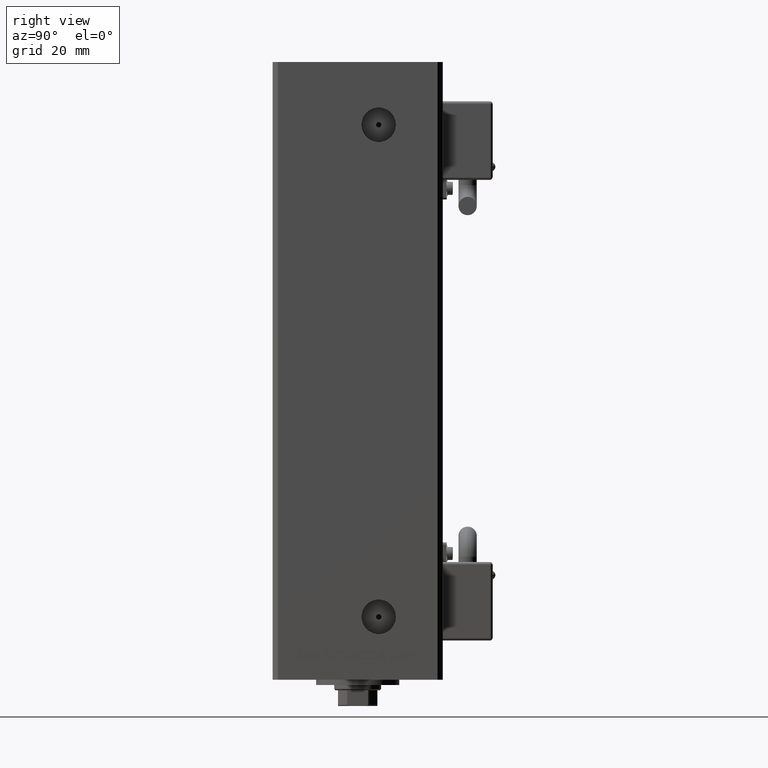
[diagram: clean part render]
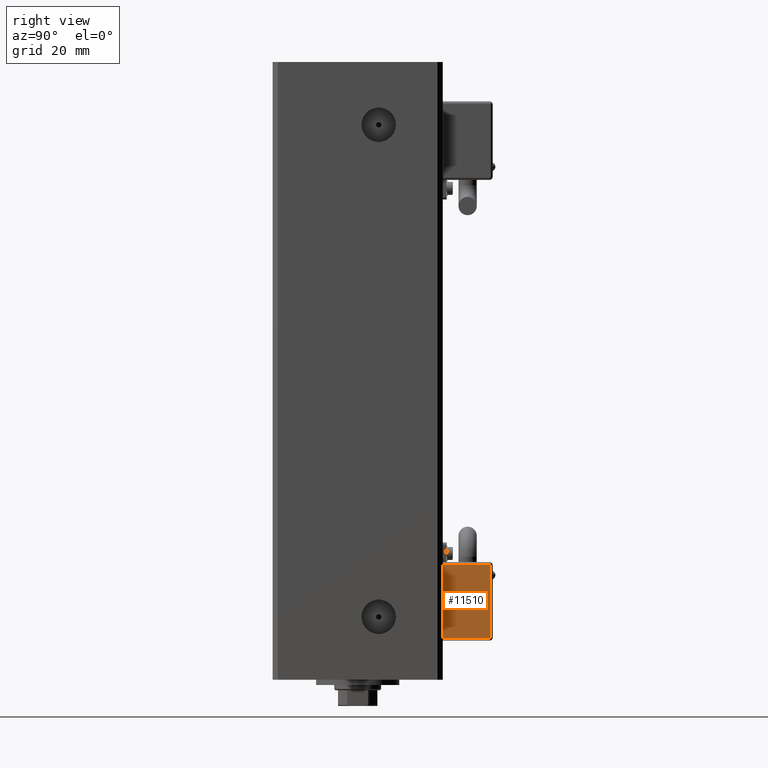
[diagram: same view with one face highlighted and labeled with its STEP entity id]
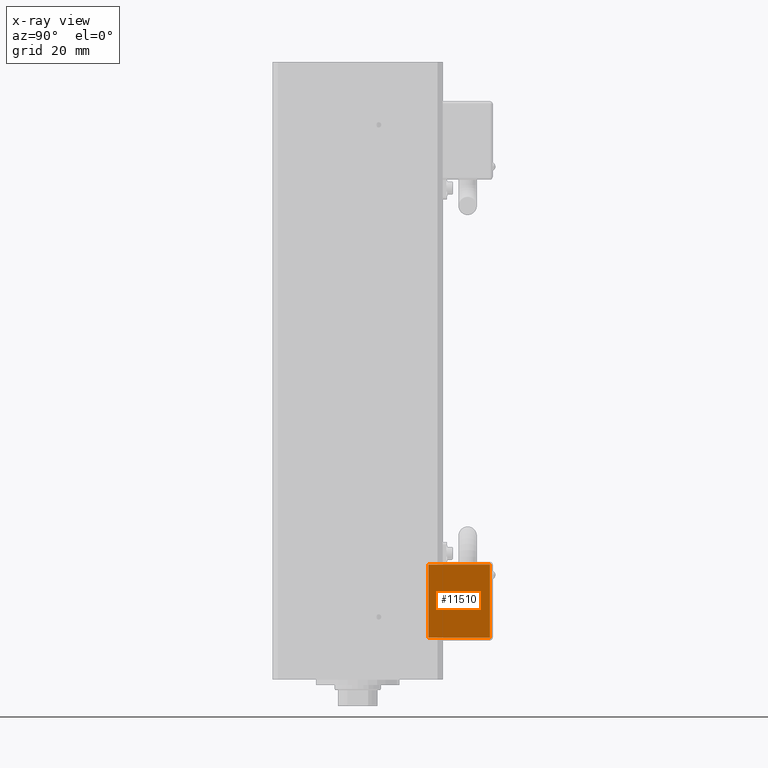
[diagram: x-ray of the same camera — body ghosted, the highlighted face saturated]
A machine part, right view. The second image highlights one B-rep face of the part: STEP entity #11510.
The next image is the same camera in x-ray: the body ghosted, the highlighted face saturated — about 0% of this face is hidden behind the body in this view.
In plain terms, the highlighted planar face has unit normal (-1, 0, 0).
Its self-contained STEP definition (entity closure, byte-faithful):
#988 = VERTEX_POINT ( 'NONE', #9253 ) ;
#2517 = DIRECTION ( 'NONE',  ( 3.108624468950000014E-32, -1.000000000000000000, -1.400000000000000069E-16 ) ) ;
#2853 = CARTESIAN_POINT ( 'NONE',  ( -10.80000000000000071, 50.50000000000000000, -54.00000000000000000 ) ) ;
#7615 = VERTEX_POINT ( 'NONE', #2853 ) ;
#8364 = LINE ( 'NONE', #25541, #35552 ) ;
#9253 = CARTESIAN_POINT ( 'NONE',  ( -10.80000000000000071, 50.50000000000000000, -26.00000000000000000 ) ) ;
#10146 = CARTESIAN_POINT ( 'NONE',  ( -10.80000000000000071, 50.50000000000000000, -55.00000000000000000 ) ) ;
#11510 = ADVANCED_FACE ( 'NONE', ( #29484 ), #37691, .F. ) ;
#11708 = LINE ( 'NONE', #32057, #11806 ) ;
#11806 = VECTOR ( 'NONE', #39749, 1000.000000000000000 ) ;
#15009 = VECTOR ( 'NONE', #34470, 1000.000000000000000 ) ;
#15922 = EDGE_CURVE ( 'NONE', #988, #7615, #22294, .T. ) ;
#19232 = CARTESIAN_POINT ( 'NONE',  ( -10.80000000000000071, 27.00000000000000000, -54.00000000000000000 ) ) ;
#20340 = LINE ( 'NONE', #24053, #50762 ) ;
#21282 = DIRECTION ( 'NONE',  ( 1.000000000000000000, 4.930380657629929601E-32, 1.094764425253299406E-47 ) ) ;
#22294 = LINE ( 'NONE', #10146, #15009 ) ;
#22524 = AXIS2_PLACEMENT_3D ( 'NONE', #29231, #21282, #49854 ) ;
#24053 = CARTESIAN_POINT ( 'NONE',  ( -10.80000000000000071, 27.00000000000000000, -55.00000000000000000 ) ) ;
#25541 = CARTESIAN_POINT ( 'NONE',  ( -10.80000000000000071, 26.00000000000000000, -54.00000000000000000 ) ) ;
#26210 = VERTEX_POINT ( 'NONE', #19232 ) ;
#26532 = EDGE_CURVE ( 'NONE', #7615, #26210, #8364, .T. ) ;
#26724 = ORIENTED_EDGE ( 'NONE', *, *, #15922, .T. ) ;
#29231 = CARTESIAN_POINT ( 'NONE',  ( -10.80000000000000071, 26.00000000000000000, -55.00000000000000000 ) ) ;
#29484 = FACE_OUTER_BOUND ( 'NONE', #46349, .T. ) ;
#29771 = VERTEX_POINT ( 'NONE', #32551 ) ;
#32057 = CARTESIAN_POINT ( 'NONE',  ( -10.80000000000000071, 26.00000000000000000, -26.00000000000000000 ) ) ;
#32551 = CARTESIAN_POINT ( 'NONE',  ( -10.80000000000000071, 27.00000000000000000, -26.00000000000000000 ) ) ;
#34470 = DIRECTION ( 'NONE',  ( 2.220446049250000002E-16, 1.200000000000000024E-16, -1.000000000000000000 ) ) ;
#35552 = VECTOR ( 'NONE', #2517, 1000.000000000000000 ) ;
#37691 = PLANE ( 'NONE',  #22524 ) ;
#39749 = DIRECTION ( 'NONE',  ( -3.108624468950000014E-32, 1.000000000000000000, 1.400000000000000069E-16 ) ) ;
#41078 = EDGE_CURVE ( 'NONE', #29771, #988, #11708, .T. ) ;
#41170 = ORIENTED_EDGE ( 'NONE', *, *, #47231, .T. ) ;
#41938 = ORIENTED_EDGE ( 'NONE', *, *, #26532, .T. ) ;
#44446 = DIRECTION ( 'NONE',  ( -2.220446049250000002E-16, -1.200000000000000024E-16, 1.000000000000000000 ) ) ;
#46349 = EDGE_LOOP ( 'NONE', ( #47584, #26724, #41938, #41170 ) ) ;
#47231 = EDGE_CURVE ( 'NONE', #26210, #29771, #20340, .T. ) ;
#47584 = ORIENTED_EDGE ( 'NONE', *, *, #41078, .T. ) ;
#49854 = DIRECTION ( 'NONE',  ( 0.000000000000000000, -2.220446049250000002E-16, 1.000000000000000000 ) ) ;
#50762 = VECTOR ( 'NONE', #44446, 1000.000000000000000 ) ;